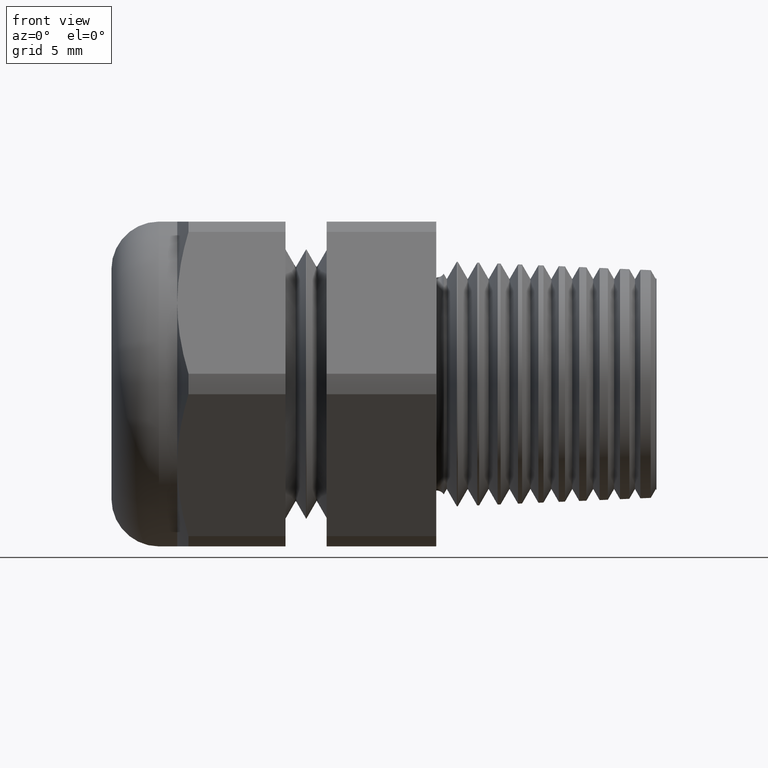
[diagram: clean part render]
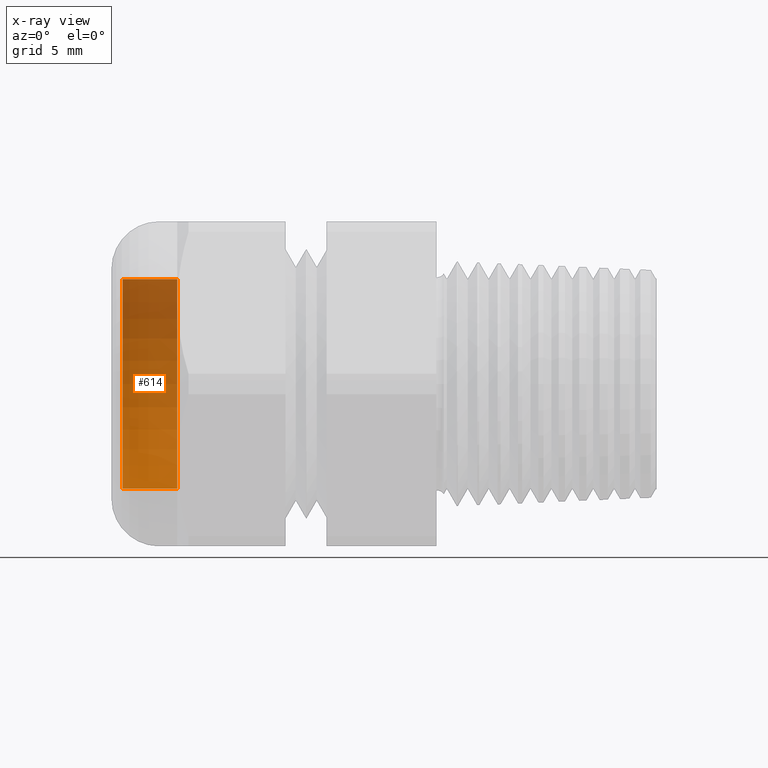
[diagram: x-ray — body ghosted, one internal face saturated and labeled with its STEP entity id]
A machine part, front view, then the same camera in x-ray: the body is ghosted and one INTERNAL B-rep face — a face not visible from any outside direction — is saturated and labeled: STEP entity #614.
In plain terms, the highlighted cylindrical surface (partial cylindrical patch) has radius 7.1247 mm, axis along (1, 0, 0).
Its self-contained STEP definition (entity closure, byte-faithful):
#524 = VERTEX_POINT ( 'NONE', #1983 ) ;
#535 = EDGE_CURVE ( 'NONE', #536, #524, #2035, .T. ) ;
#536 = VERTEX_POINT ( 'NONE', #2030 ) ;
#614 = ADVANCED_FACE ( 'NONE', ( #2142 ), #2141, .T. ) ;
#615 = EDGE_LOOP ( 'NONE', ( #617, #618, #621, #624 ) ) ;
#617 = ORIENTED_EDGE ( 'NONE', *, *, #535, .T. ) ;
#618 = ORIENTED_EDGE ( 'NONE', *, *, #619, .T. ) ;
#619 = EDGE_CURVE ( 'NONE', #524, #620, #2198, .T. ) ;
#620 = VERTEX_POINT ( 'NONE', #2194 ) ;
#621 = ORIENTED_EDGE ( 'NONE', *, *, #622, .F. ) ;
#622 = EDGE_CURVE ( 'NONE', #623, #620, #2193, .T. ) ;
#623 = VERTEX_POINT ( 'NONE', #2188 ) ;
#624 = ORIENTED_EDGE ( 'NONE', *, *, #625, .F. ) ;
#625 = EDGE_CURVE ( 'NONE', #536, #623, #2187, .T. ) ;
#1983 = CARTESIAN_POINT ( 'NONE',  ( -0.8399999999999999700, 3.435134271608326200E-017, 0.2805000000000000300 ) ) ;
#2030 = CARTESIAN_POINT ( 'NONE',  ( -0.8399999999999999700, 0.0000000000000000000, -0.2805000000000000300 ) ) ;
#2031 = DIRECTION ( 'NONE',  ( 0.0000000000000000000, 0.0000000000000000000, 1.000000000000000000 ) ) ;
#2032 = DIRECTION ( 'NONE',  ( 1.000000000000000000, 0.0000000000000000000, 0.0000000000000000000 ) ) ;
#2033 = CARTESIAN_POINT ( 'NONE',  ( -0.8399999999999999700, 0.0000000000000000000, 0.0000000000000000000 ) ) ;
#2034 = AXIS2_PLACEMENT_3D ( 'NONE', #2033, #2032, #2031 ) ;
#2035 = CIRCLE ( 'NONE', #2034, 0.2805000000000000300 ) ;
#2136 = DIRECTION ( 'NONE',  ( 0.0000000000000000000, 0.0000000000000000000, -1.000000000000000000 ) ) ;
#2137 = DIRECTION ( 'NONE',  ( 1.000000000000000000, 0.0000000000000000000, 0.0000000000000000000 ) ) ;
#2138 = CARTESIAN_POINT ( 'NONE',  ( 0.3423310023310022200, 0.0000000000000000000, 0.0000000000000000000 ) ) ;
#2139 = AXIS2_PLACEMENT_3D ( 'NONE', #2138, #2137, #2136 ) ;
#2141 = CYLINDRICAL_SURFACE ( 'NONE', #2139, 0.2805000000000000300 ) ;
#2142 = FACE_OUTER_BOUND ( 'NONE', #615, .T. ) ;
#2184 = DIRECTION ( 'NONE',  ( 1.000000000000000000, 0.0000000000000000000, 0.0000000000000000000 ) ) ;
#2185 = VECTOR ( 'NONE', #2184, 39.37007874015748100 ) ;
#2186 = CARTESIAN_POINT ( 'NONE',  ( 0.3423310023310022200, 0.0000000000000000000, -0.2805000000000000300 ) ) ;
#2187 = LINE ( 'NONE', #2186, #2185 ) ;
#2188 = CARTESIAN_POINT ( 'NONE',  ( -0.6937499999999999800, 0.0000000000000000000, -0.2805000000000000300 ) ) ;
#2189 = DIRECTION ( 'NONE',  ( 0.0000000000000000000, 0.0000000000000000000, -1.000000000000000000 ) ) ;
#2190 = DIRECTION ( 'NONE',  ( 1.000000000000000000, 0.0000000000000000000, 0.0000000000000000000 ) ) ;
#2191 = CARTESIAN_POINT ( 'NONE',  ( -0.6937499999999999800, 0.0000000000000000000, 0.0000000000000000000 ) ) ;
#2192 = AXIS2_PLACEMENT_3D ( 'NONE', #2191, #2190, #2189 ) ;
#2193 = CIRCLE ( 'NONE', #2192, 0.2805000000000000300 ) ;
#2194 = CARTESIAN_POINT ( 'NONE',  ( -0.6937499999999999800, 3.435134271608326200E-017, 0.2805000000000000300 ) ) ;
#2195 = DIRECTION ( 'NONE',  ( 1.000000000000000000, 0.0000000000000000000, 0.0000000000000000000 ) ) ;
#2196 = VECTOR ( 'NONE', #2195, 39.37007874015748100 ) ;
#2197 = CARTESIAN_POINT ( 'NONE',  ( 0.3423310023310022200, 3.435134271608326200E-017, 0.2805000000000000300 ) ) ;
#2198 = LINE ( 'NONE', #2197, #2196 ) ;